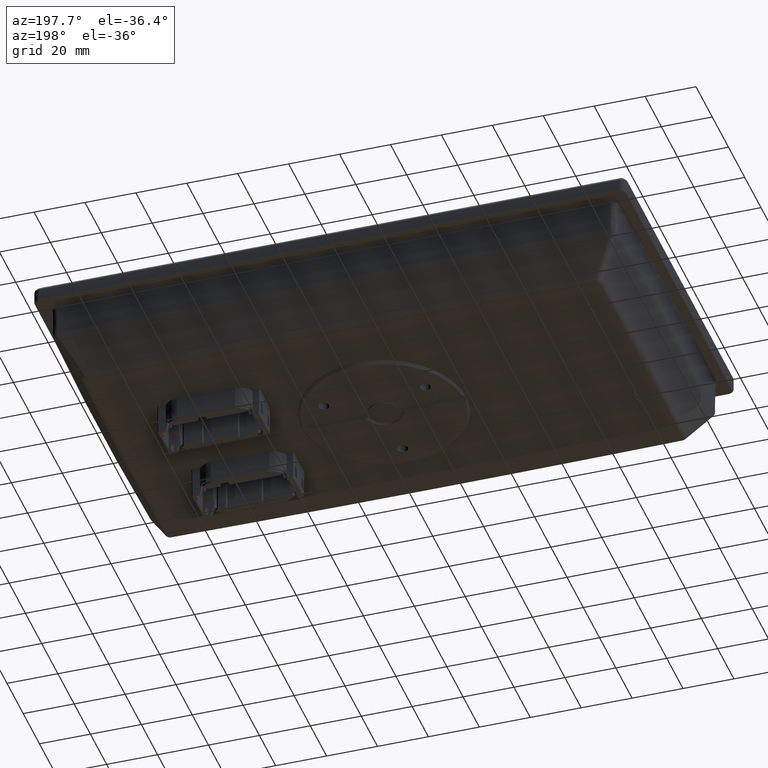
[diagram: clean part render]
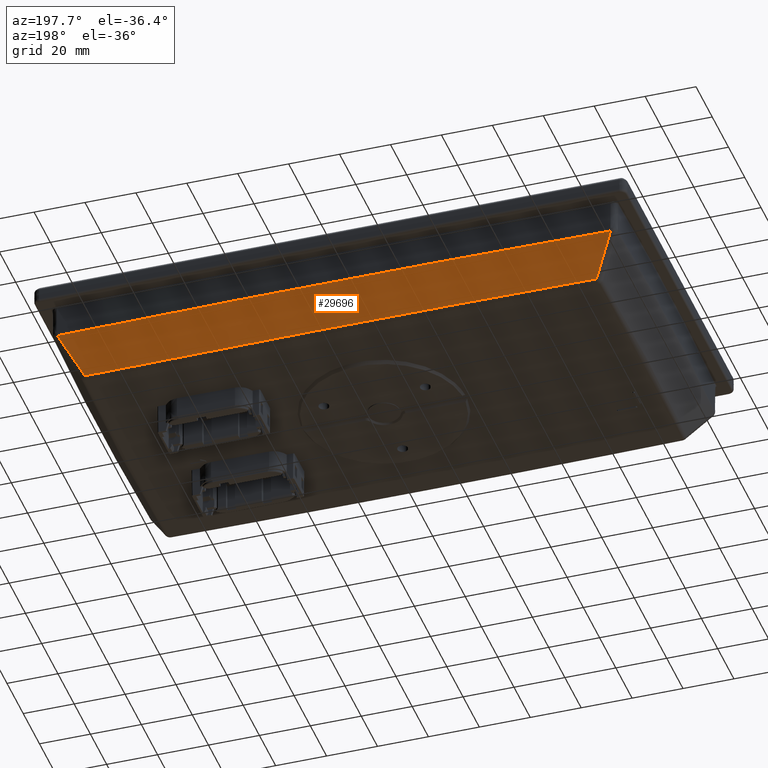
[diagram: same view with one face highlighted and labeled with its STEP entity id]
A machine part, auxiliary view. The second image highlights one B-rep face of the part: STEP entity #29696.
In plain terms, the highlighted conical surface has half-angle 30 deg.
Its self-contained STEP definition (entity closure, byte-faithful):
#590=CONICAL_SURFACE('',#35491,6160.87258773021,0.523598775598299);
#1697=CIRCLE('',#35464,6160.56981799751);
#11216=ORIENTED_EDGE('',*,*,#18846,.T.);
#11217=ORIENTED_EDGE('',*,*,#18845,.T.);
#11218=ORIENTED_EDGE('',*,*,#18874,.T.);
#11219=ORIENTED_EDGE('',*,*,#18847,.T.);
#18845=EDGE_CURVE('',#22804,#22815,#24918,.T.);
#18846=EDGE_CURVE('',#22806,#22804,#1697,.F.);
#18847=EDGE_CURVE('',#22816,#22806,#24919,.T.);
#18874=EDGE_CURVE('',#22815,#22816,#24924,.T.);
#22804=VERTEX_POINT('',#50000);
#22806=VERTEX_POINT('',#50009);
#22815=VERTEX_POINT('',#50090);
#22816=VERTEX_POINT('',#50113);
#24918=B_SPLINE_CURVE_WITH_KNOTS('',3,(#50091,#50092,#50093,#50094),
 .UNSPECIFIED.,.F.,.F.,(4,4),(4.05925293378573E-16,0.0187173992904596),
 .UNSPECIFIED.);
#24919=B_SPLINE_CURVE_WITH_KNOTS('',3,(#50109,#50110,#50111,#50112),
 .UNSPECIFIED.,.F.,.F.,(4,4),(0.,0.0187173847840935),.UNSPECIFIED.);
#24924=B_SPLINE_CURVE_WITH_KNOTS('',3,(#50177,#50178,#50179,#50180),
 .UNSPECIFIED.,.F.,.F.,(4,4),(0.,0.200962023711369),.UNSPECIFIED.);
#25696=EDGE_LOOP('',(#11216,#11217,#11218,#11219));
#27692=FACE_BOUND('',#25696,.T.);
#29696=ADVANCED_FACE('',(#27692),#590,.T.);
#35464=AXIS2_PLACEMENT_3D('',#50096,#39997,#39998);
#35491=AXIS2_PLACEMENT_3D('',#50176,#40055,#40056);
#39997=DIRECTION('',(0.,0.,1.));
#39998=DIRECTION('',(1.,0.,0.));
#40055=DIRECTION('',(0.,0.,1.));
#40056=DIRECTION('',(-1.,0.,0.));
#50000=CARTESIAN_POINT('',(108.687269821845,61.6109909471135,-16.824412560037));
#50009=CARTESIAN_POINT('',(-108.687269821845,61.6109909471139,-16.8244125600369));
#50090=CARTESIAN_POINT('',(100.477023276922,53.3046050067829,-31.4509904631527));
#50091=CARTESIAN_POINT('',(108.687269821845,61.6109909471135,-16.8244125600367));
#50092=CARTESIAN_POINT('',(105.954722901246,58.842441011951,-21.7024352968872));
#50093=CARTESIAN_POINT('',(103.21799215356,56.0736459506189,-26.5779740296547));
#50094=CARTESIAN_POINT('',(100.477023276922,53.3046050067829,-31.4509904631528));
#50096=CARTESIAN_POINT('',(-3.67761376907083E-13,-6098.00000000033,-16.8244125600365));
#50109=CARTESIAN_POINT('',(-100.477029530484,53.3046113243921,-31.4509793452929));
#50110=CARTESIAN_POINT('',(-103.217996316155,56.073650161985,-26.5779666139111));
#50111=CARTESIAN_POINT('',(-105.954724979361,58.8424431174475,-21.702431587126));
#50112=CARTESIAN_POINT('',(-108.687269821845,61.6109909471135,-16.8244125600368));
#50113=CARTESIAN_POINT('',(-100.477029530484,53.3046113243921,-31.4509793452929));
#50176=CARTESIAN_POINT('',(-3.67761376907083E-13,-6098.00000000033,-16.3));
#50177=CARTESIAN_POINT('',(100.477023276922,53.3046050067829,-31.4509904631527));
#50178=CARTESIAN_POINT('',(33.4975984291404,54.367138657228,-31.5055875502497));
#50179=CARTESIAN_POINT('',(-33.4975990858288,54.3668441804425,-31.5060976283782));
#50180=CARTESIAN_POINT('',(-100.477029530484,53.3046113243923,-31.4509793452929));